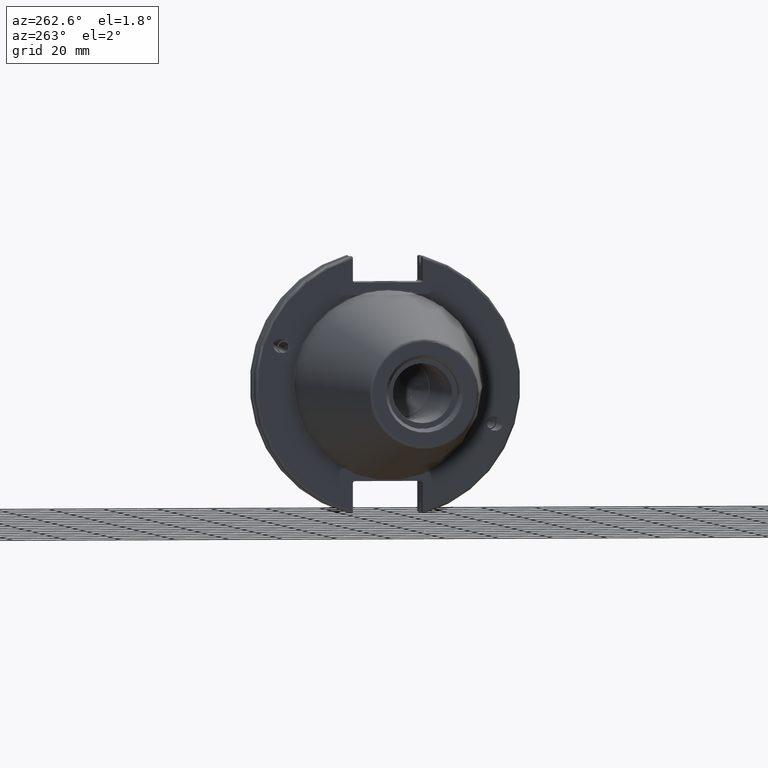
[diagram: clean part render]
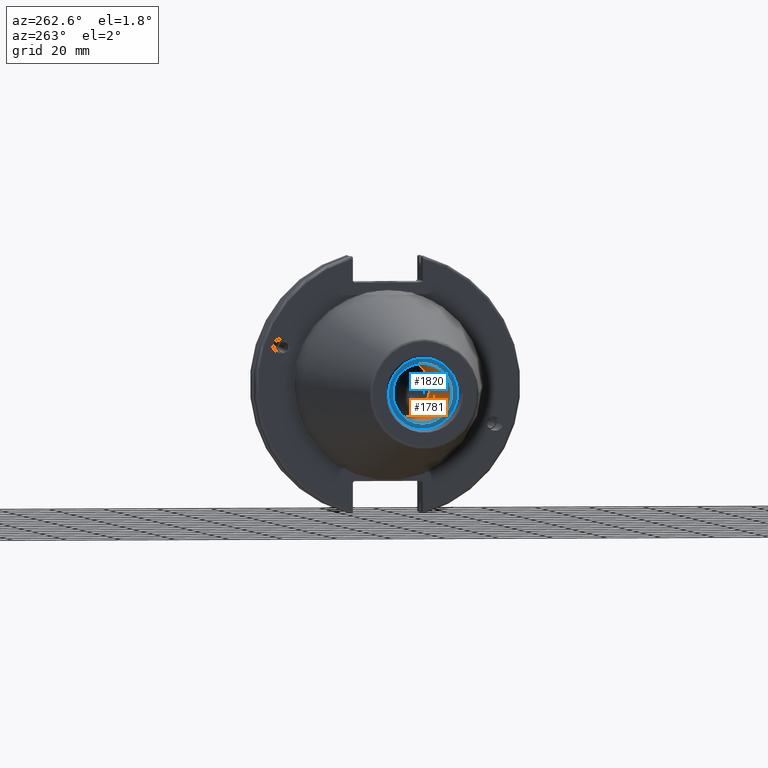
[diagram: same view with the hole feature highlighted: cylindrical wall and planar end face, labeled with their STEP entity ids]
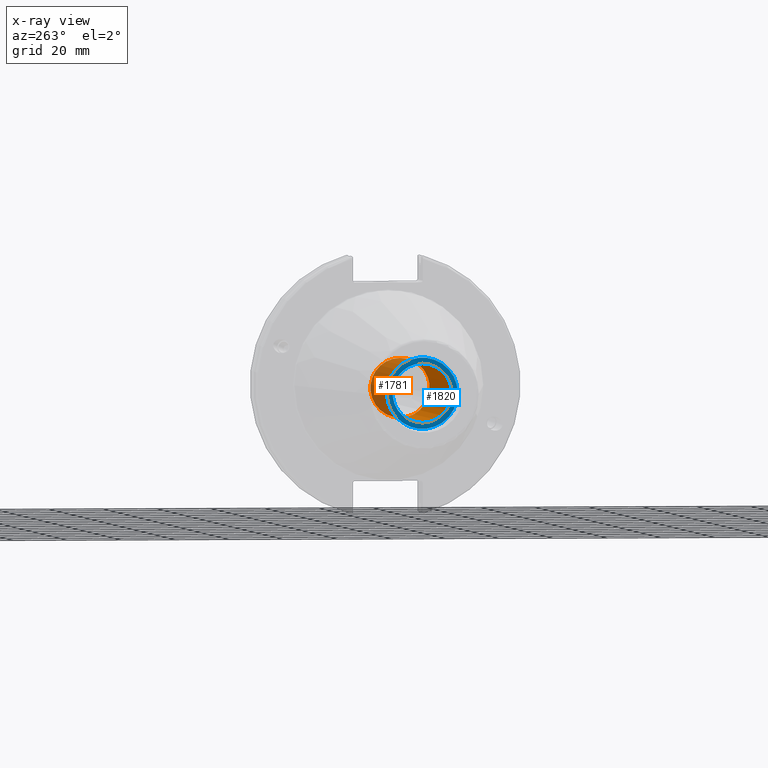
[diagram: x-ray of the same camera — body ghosted, the hole faces saturated]
A machine part, auxiliary view. The highlighted faces form one hole feature of diameter 21.971 mm: the cylindrical wall (entity #1781, orange) and its adjacent planar end face (entity #1820, blue) — they share a circular edge in the B-rep.
The next image is the same camera in x-ray (body ghosted, the hole faces saturated) — the bore reads through the body.
Wall:
#97=CYLINDRICAL_SURFACE('',#1976,10.9855);
#220=FACE_OUTER_BOUND('',#330,.T.);
#330=EDGE_LOOP('',(#1447,#1448,#1449,#1450,#1451));
#433=LINE('',#3297,#531);
#531=VECTOR('',#2376,10.9855);
#653=CIRCLE('',#1974,10.9855);
#654=CIRCLE('',#1975,10.9855);
#655=CIRCLE('',#1977,10.9855);
#823=VERTEX_POINT('',#3289);
#824=VERTEX_POINT('',#3290);
#825=VERTEX_POINT('',#3295);
#1052=EDGE_CURVE('',#823,#824,#653,.T.);
#1054=EDGE_CURVE('',#824,#823,#654,.T.);
#1055=EDGE_CURVE('',#825,#825,#655,.T.);
#1056=EDGE_CURVE('',#825,#824,#433,.T.);
#1447=ORIENTED_EDGE('',*,*,#1055,.F.);
#1448=ORIENTED_EDGE('',*,*,#1056,.T.);
#1449=ORIENTED_EDGE('',*,*,#1052,.F.);
#1450=ORIENTED_EDGE('',*,*,#1054,.F.);
#1451=ORIENTED_EDGE('',*,*,#1056,.F.);
#1781=ADVANCED_FACE('',(#220),#97,.F.);
#1974=AXIS2_PLACEMENT_3D('',#3291,#2367,#2368);
#1975=AXIS2_PLACEMENT_3D('',#3293,#2370,#2371);
#1976=AXIS2_PLACEMENT_3D('',#3294,#2372,#2373);
#1977=AXIS2_PLACEMENT_3D('',#3296,#2374,#2375);
#2367=DIRECTION('center_axis',(-1.,0.,0.));
#2368=DIRECTION('ref_axis',(0.,0.,1.));
#2370=DIRECTION('center_axis',(-1.,0.,0.));
#2371=DIRECTION('ref_axis',(0.,0.,1.));
#2372=DIRECTION('center_axis',(-1.,0.,0.));
#2373=DIRECTION('ref_axis',(0.,0.,1.));
#2374=DIRECTION('center_axis',(1.,0.,0.));
#2375=DIRECTION('ref_axis',(0.,0.,1.));
#2376=DIRECTION('',(1.,0.,0.));
#3289=CARTESIAN_POINT('',(-31.6,0.,10.9855));
#3290=CARTESIAN_POINT('',(-31.6,-1.34533574120333E-15,-10.9855));
#3291=CARTESIAN_POINT('Origin',(-31.6,0.,0.));
#3293=CARTESIAN_POINT('Origin',(-31.6,0.,0.));
#3294=CARTESIAN_POINT('Origin',(-66.6,0.,0.));
#3295=CARTESIAN_POINT('',(-95.25,1.34533574120333E-15,-10.9855));
#3296=CARTESIAN_POINT('Origin',(-95.25,0.,0.));
#3297=CARTESIAN_POINT('',(-66.6,-1.34533574120333E-15,-10.9855));
End face:
#129=FACE_BOUND('',#375,.T.);
#171=PLANE('',#2049);
#259=FACE_OUTER_BOUND('',#374,.T.);
#374=EDGE_LOOP('',(#1677,#1678));
#375=EDGE_LOOP('',(#1679));
#655=CIRCLE('',#1977,10.9855);
#689=CIRCLE('',#2050,13.1);
#690=CIRCLE('',#2051,13.1);
#825=VERTEX_POINT('',#3295);
#889=VERTEX_POINT('',#3613);
#890=VERTEX_POINT('',#3614);
#1055=EDGE_CURVE('',#825,#825,#655,.T.);
#1158=EDGE_CURVE('',#889,#890,#689,.T.);
#1159=EDGE_CURVE('',#890,#889,#690,.T.);
#1677=ORIENTED_EDGE('',*,*,#1158,.F.);
#1678=ORIENTED_EDGE('',*,*,#1159,.F.);
#1679=ORIENTED_EDGE('',*,*,#1055,.T.);
#1820=ADVANCED_FACE('',(#259,#129),#171,.T.);
#1977=AXIS2_PLACEMENT_3D('',#3296,#2374,#2375);
#2049=AXIS2_PLACEMENT_3D('',#3612,#2563,#2564);
#2050=AXIS2_PLACEMENT_3D('',#3615,#2565,#2566);
#2051=AXIS2_PLACEMENT_3D('',#3616,#2567,#2568);
#2374=DIRECTION('center_axis',(1.,0.,0.));
#2375=DIRECTION('ref_axis',(0.,0.,1.));
#2563=DIRECTION('center_axis',(-1.,0.,0.));
#2564=DIRECTION('ref_axis',(0.,0.,1.));
#2565=DIRECTION('center_axis',(1.,0.,0.));
#2566=DIRECTION('ref_axis',(0.,0.,-1.));
#2567=DIRECTION('center_axis',(1.,0.,0.));
#2568=DIRECTION('ref_axis',(0.,0.,-1.));
#3295=CARTESIAN_POINT('',(-95.25,1.34533574120333E-15,-10.9855));
#3296=CARTESIAN_POINT('Origin',(-95.25,0.,0.));
#3612=CARTESIAN_POINT('Origin',(-95.25,13.1,0.));
#3613=CARTESIAN_POINT('',(-95.25,13.1,0.));
#3614=CARTESIAN_POINT('',(-95.25,-13.1,-1.60428730688303E-15));
#3615=CARTESIAN_POINT('Origin',(-95.25,0.,0.));
#3616=CARTESIAN_POINT('Origin',(-95.25,0.,0.));